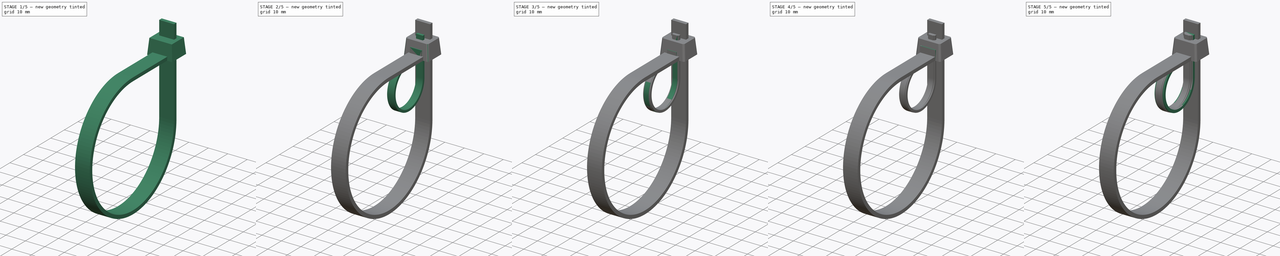
[diagram: build sequence overview — one tinted view per stage of 5, left to right]
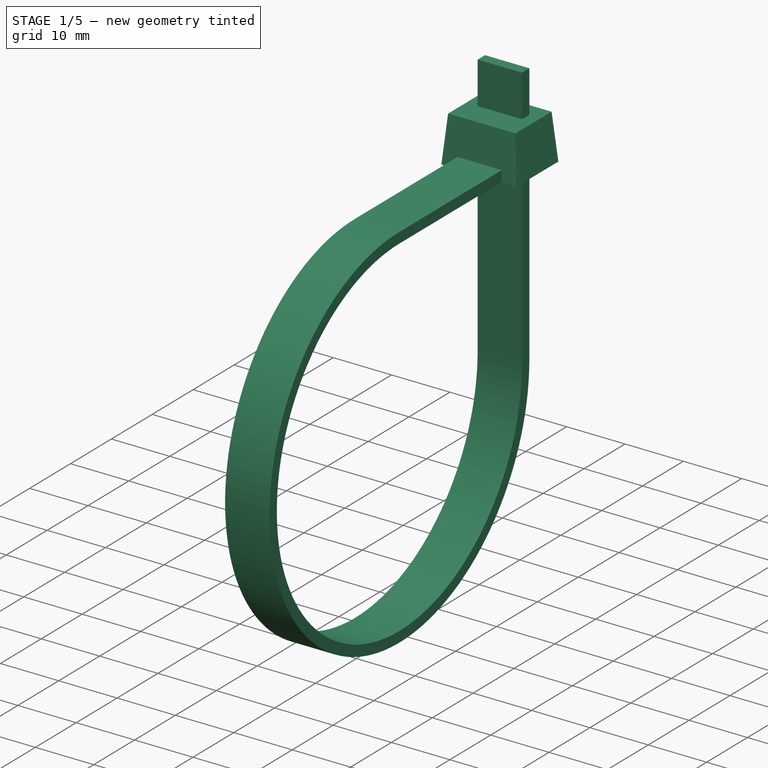
[diagram: stage 1 of 5 — iso view after this stage's code; geometry added in this stage tinted green]
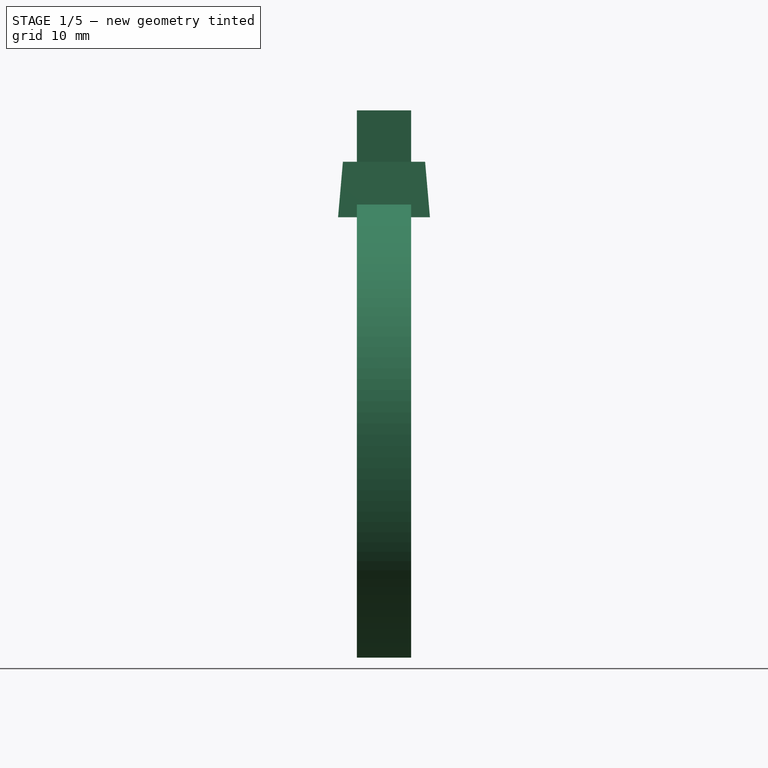
[diagram: stage 1 of 5 — front view after this stage's code; geometry added in this stage tinted green]
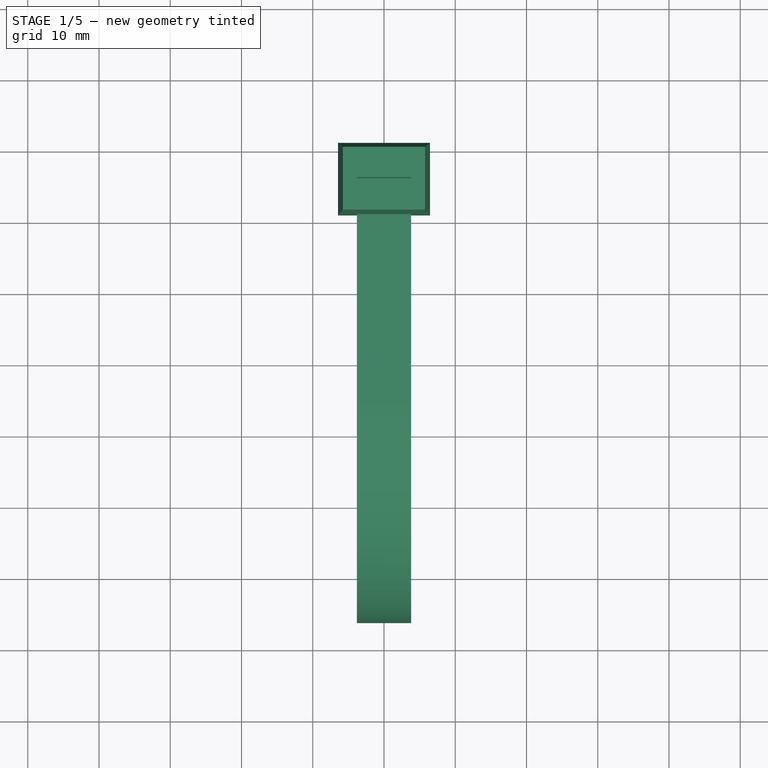
[diagram: stage 1 of 5 — top view after this stage's code; geometry added in this stage tinted green]
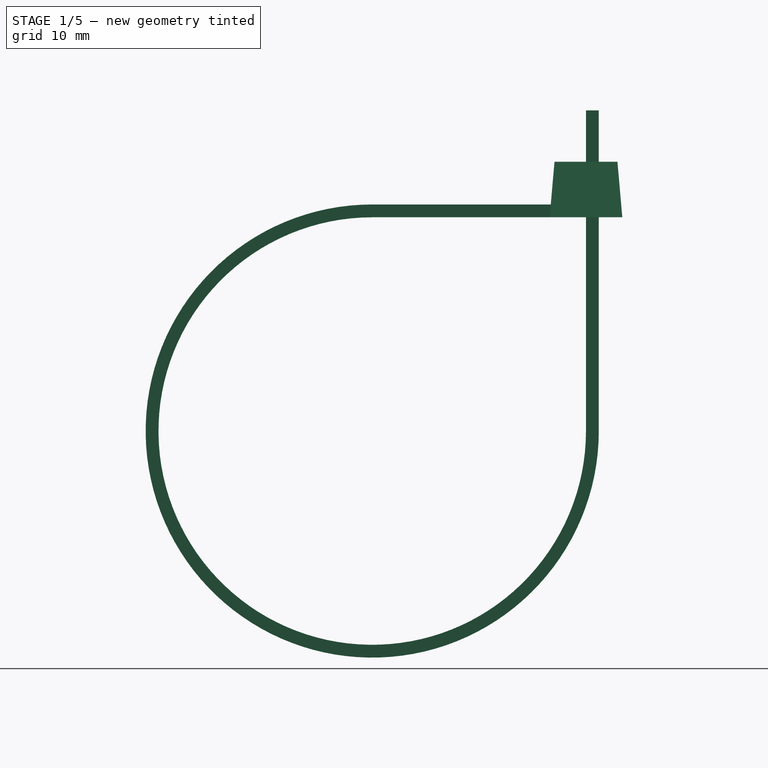
[diagram: stage 1 of 5 — right view after this stage's code; geometry added in this stage tinted green]
FCSTD DOCUMENT  (FreeCAD 0.22R38001 (Git))
Label: Kabelbinder
License: All rights reserved
LicenseURL: https://en.wikipedia.org/wiki/All_rights_reserved
objects: Sketcher::SketchObject×12, PartDesign::Pad×4, PartDesign::AdditivePipe×4, PartDesign::Draft×4, PartDesign::Fillet×4, PartDesign::Body×4
note: 48 computed .brp shape members not serialized (recipe doc carries the construction recipe); baked Part::Feature solids carry a one-line shape summary decoded from their .brp

FEATURE [PartDesign::Body] Body002  label="Kabelbinder_3.5"
  AllowCompound = false
  Group = -> [Sketch007,Pad002,Sketch008,Sketch009,AdditivePipe002,Draft002,Fillet002]
  Origin = -> Origin002
  Tip = -> Fillet002
FEATURE [Sketcher::SketchObject] Sketch010
  AttachmentSupport = -> [XY_Plane003]
  FullyConstrained = true
  MapMode = 5
  sketch-geometry (8):
    g0: LineSegment StartX=-6.45 StartY=0 StartZ=0 EndX=6.45 EndY=0 EndZ=0
    g1: LineSegment StartX=6.45 StartY=0 StartZ=0 EndX=6.45 EndY=10.2 EndZ=0
    g2: LineSegment StartX=6.45 StartY=10.2 StartZ=0 EndX=-6.45 EndY=10.2 EndZ=0
    g3: LineSegment StartX=-6.45 StartY=10.2 StartZ=0 EndX=-6.45 EndY=0 EndZ=0
    g4: LineSegment StartX=-3.8 StartY=6.9 StartZ=0 EndX=-3.8 EndY=5.1 EndZ=0
    g5: LineSegment StartX=-3.8 StartY=5.1 StartZ=0 EndX=3.8 EndY=5.1 EndZ=0
    g6: LineSegment StartX=3.8 StartY=5.1 StartZ=0 EndX=3.8 EndY=6.9 EndZ=0
    g7: LineSegment StartX=3.8 StartY=6.9 StartZ=0 EndX=-3.8 EndY=6.9 EndZ=0
  constraints (22):
    c: Coincident(g0,g1)
    c: Coincident(g1,g2)
    c: Coincident(g2,g3)
    c: Coincident(g3,g0)
    c: Horizontal(g0)
    c: Vertical(g1)
    c: Vertical(g3)
    c: PointOnObject(g0,g-1)
    c: Coincident(g4,g5)
    c: Coincident(g5,g6)
    c: Coincident(g6,g7)
    c: Coincident(g7,g4)
    c: Vertical(g4)
    c: Vertical(g6)
    c: Horizontal(g5)
    c: Symmetric(g2,g1,g-2)
    c: Symmetric(g4,g6,g-2)
    c: DistanceY(g3,g3) = 10.2
    c: DistanceY(g4,g4) = 1.8
    c: DistanceX(g7,g7) = 7.6
    c: DistanceX(g0,g0) = 12.9
    c: Distance(g0,g5) = 5.1
FEATURE [PartDesign::Pad] Pad003
  Direction = (0,0,1)
  Length = 7.8
  Length2 = 10
  Profile = -> Sketch010
  ReferenceAxis = -> Sketch010 [N_Axis]
  Refine = true
  Suppressed = false
  Type = 0
FEATURE [Sketcher::SketchObject] Sketch011  label="Profil_Sketch003"
  AttachmentSupport = -> [Pad003]
  FullyConstrained = true
  MapMode = 5
  Placement = pos=(0,0,0) rot=(1,0,0;1.5708rad)
  sketch-geometry (4):
    g0: LineSegment StartX=-3.8 StartY=0 StartZ=0 EndX=3.8 EndY=0 EndZ=0
    g1: LineSegment StartX=3.8 StartY=0 StartZ=0 EndX=3.8 EndY=1.8 EndZ=0
    g2: LineSegment StartX=3.8 StartY=1.8 StartZ=0 EndX=-3.8 EndY=1.8 EndZ=0
    g3: LineSegment StartX=-3.8 StartY=1.8 StartZ=0 EndX=-3.8 EndY=0 EndZ=0
  constraints (11):
    c: Coincident(g0,g1)
    c: Coincident(g1,g2)
    c: Coincident(g2,g3)
    c: Coincident(g3,g0)
    c: Horizontal(g0)
    c: Vertical(g1)
    c: Vertical(g3)
    c: PointOnObject(g0,g-1)
    c: DistanceY(g3,g3) = 1.8
    c: DistanceX(g0,g0) = 7.6
    c: Symmetric(g2,g1,g-2)
FEATURE [Sketcher::SketchObject] Sketch012  label="Path_Sketch003"
  AttachmentSupport = -> [YZ_Plane003]
  FullyConstrained = true
  MapMode = 5
  Placement = pos=(0,0,0) rot=(0.57735,0.57735,0.57735;2.0944rad)
  sketch-geometry (3):
    g0: LineSegment StartX=0 StartY=0 StartZ=0 EndX=-24.9 EndY=0 EndZ=0
    g1: ArcOfCircle CenterX=-24.9 CenterY=-30 CenterZ=0 NormalX=0 NormalY=0 NormalZ=1 AngleXU=0 Radius=30 StartAngle=1.5708 EndAngle=6.28319
    g2: LineSegment StartX=5.1 StartY=-30 StartZ=0 EndX=5.1 EndY=15 EndZ=0
  constraints (8):
    c: Coincident(g0,g-1)
    c: Horizontal(g0)
    c: Vertical(g2)
    c: Tangent(g2,g1) = -1.5708
    c: Tangent(g1,g0) = -1.5708
    c: DistanceY(g2,g2) = 45
    c: Distance(g2,g-2) = 5.1
    c: Radius(g1) = 30
FEATURE [PartDesign::AdditivePipe] AdditivePipe003
  AuxilleryCurvelinear = true
  AuxillerySpineTangent = false
  BaseFeature = -> Pad003
  Binormal = (0,0,0)
  Mode = 0
  Profile = -> Sketch011
  Refine = true
  Spine = -> Sketch012
  SpineTangent = false
  Suppressed = false
  Transformation = 0
  Transition = 0
FEATURE [PartDesign::Draft] Draft003
  Angle = 5
  Base = -> AdditivePipe003 [Face1,Face5,Face3,Face6]
  BaseFeature = -> AdditivePipe003
  NeutralPlane = -> AdditivePipe003 [Face14]
  Refine = true
  Reversed = true
  SupportTransform = false
  Suppressed = false
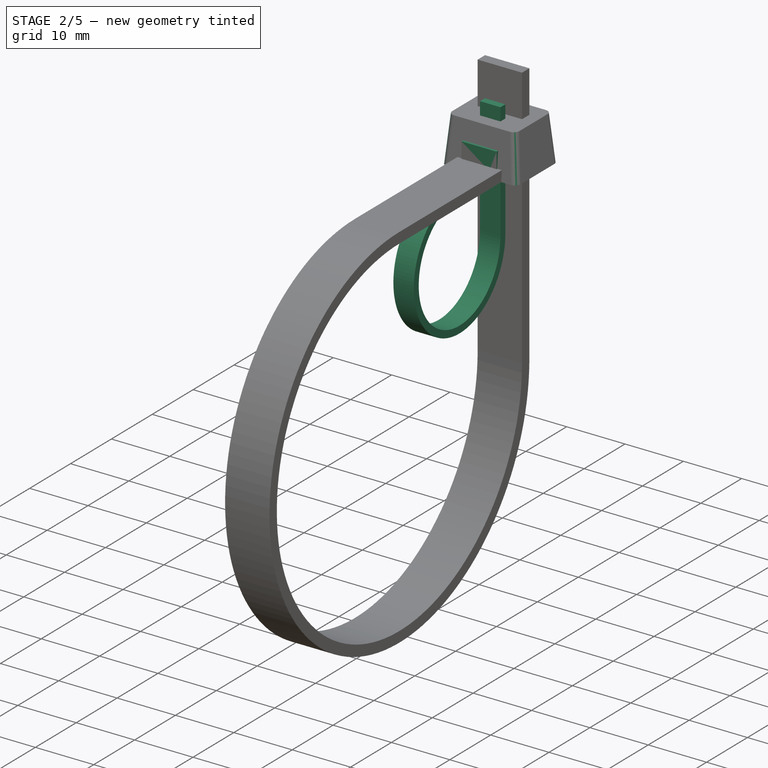
[diagram: stage 2 of 5 — iso view after this stage's code; geometry added in this stage tinted green]
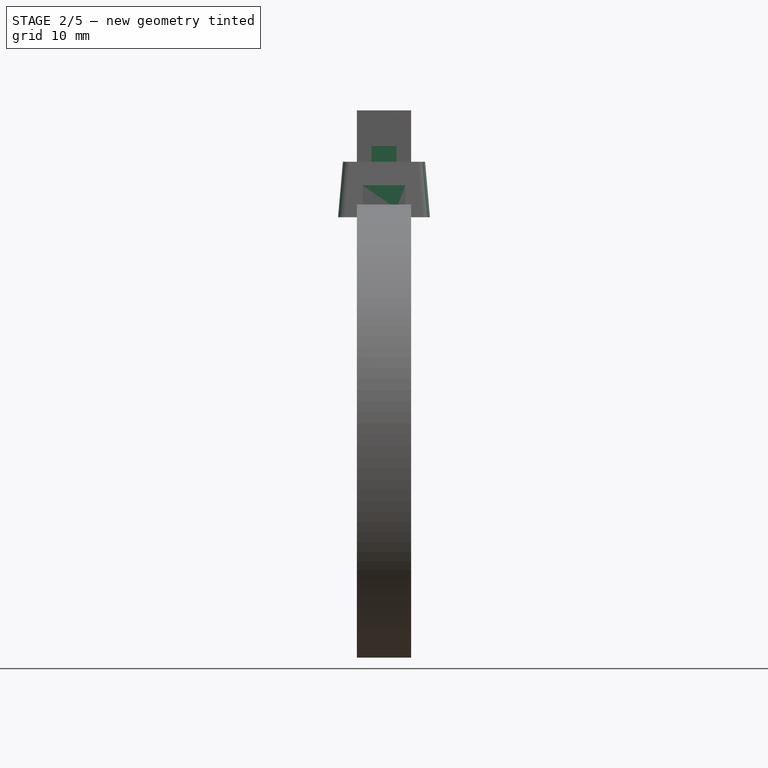
[diagram: stage 2 of 5 — front view after this stage's code; geometry added in this stage tinted green]
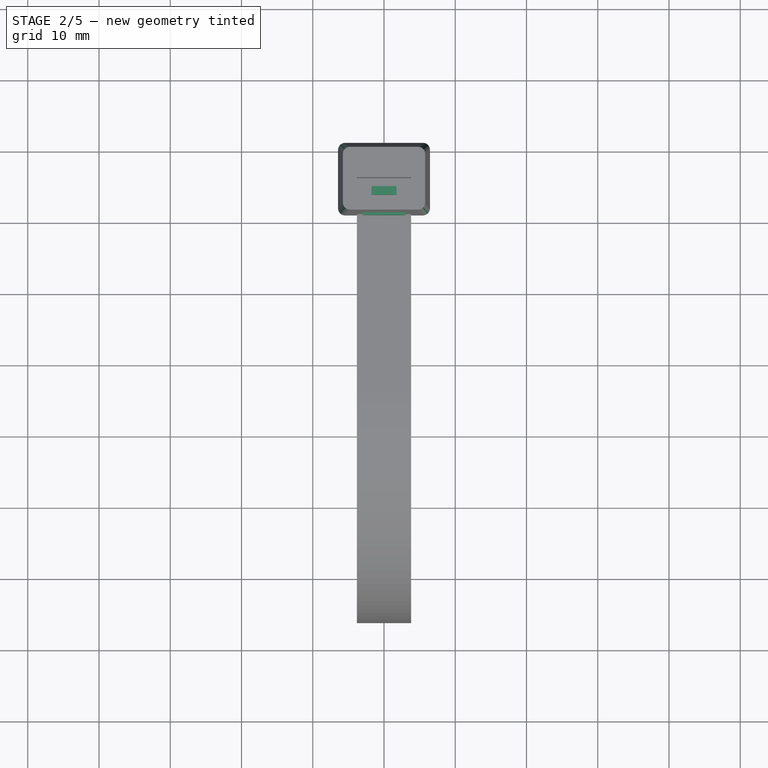
[diagram: stage 2 of 5 — top view after this stage's code; geometry added in this stage tinted green]
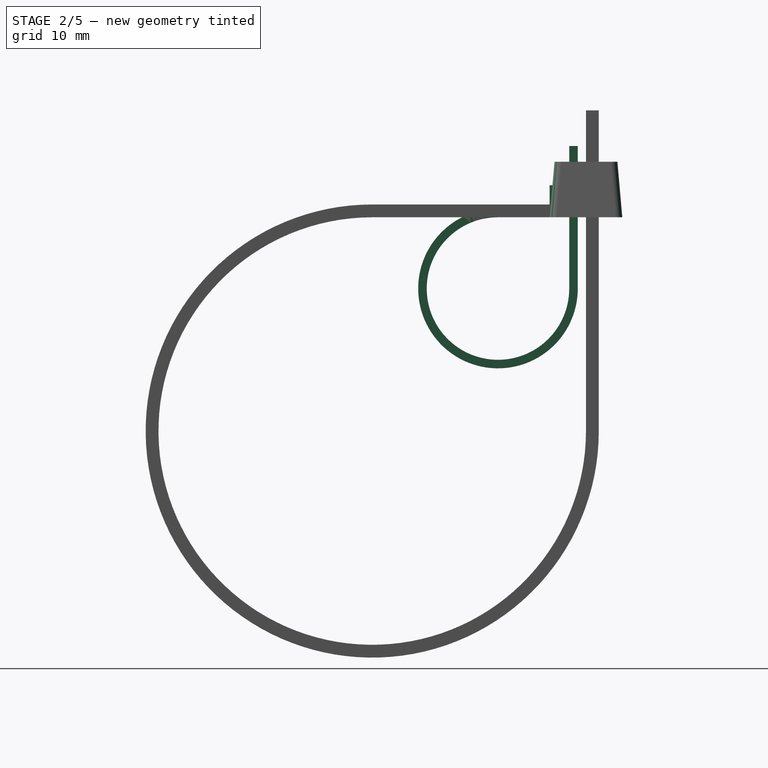
[diagram: stage 2 of 5 — right view after this stage's code; geometry added in this stage tinted green]
FEATURE [PartDesign::Body] Body001  label="Kabelbinder_2.5"
  AllowCompound = false
  Group = -> [Sketch004,Pad001,Sketch005,Sketch006,AdditivePipe001,Draft001,Fillet001]
  Origin = -> Origin001
  Tip = -> Fillet001
FEATURE [Sketcher::SketchObject] Sketch007
  AttachmentSupport = -> [XY_Plane002]
  FullyConstrained = true
  MapMode = 5
  sketch-geometry (8):
    g0: LineSegment StartX=-3 StartY=0 StartZ=0 EndX=3 EndY=0 EndZ=0
    g1: LineSegment StartX=3 StartY=0 StartZ=0 EndX=3 EndY=5.5 EndZ=0
    g2: LineSegment StartX=3 StartY=5.5 StartZ=0 EndX=-3 EndY=5.5 EndZ=0
    g3: LineSegment StartX=-3 StartY=5.5 StartZ=0 EndX=-3 EndY=0 EndZ=0
    g4: LineSegment StartX=-1.75 StartY=3.95 StartZ=0 EndX=-1.75 EndY=2.75 EndZ=0
    g5: LineSegment StartX=-1.75 StartY=2.75 StartZ=0 EndX=1.75 EndY=2.75 EndZ=0
    g6: LineSegment StartX=1.75 StartY=2.75 StartZ=0 EndX=1.75 EndY=3.95 EndZ=0
    g7: LineSegment StartX=1.75 StartY=3.95 StartZ=0 EndX=-1.75 EndY=3.95 EndZ=0
  constraints (22):
    c: Coincident(g0,g1)
    c: Coincident(g1,g2)
    c: Coincident(g2,g3)
    c: Coincident(g3,g0)
    c: Horizontal(g0)
    c: Vertical(g1)
    c: Vertical(g3)
    c: PointOnObject(g0,g-1)
    c: Coincident(g4,g5)
    c: Coincident(g5,g6)
    c: Coincident(g6,g7)
    c: Coincident(g7,g4)
    c: Vertical(g4)
    c: Vertical(g6)
    c: Horizontal(g5)
    c: Symmetric(g2,g1,g-2)
    c: Symmetric(g4,g6,g-2)
    c: DistanceY(g3,g3) = 5.5
    c: DistanceY(g4,g4) = 1.2
    c: DistanceX(g7,g7) = 3.5
    c: DistanceX(g0,g0) = 6
    c: Distance(g0,g5) = 2.75
FEATURE [PartDesign::Pad] Pad002
  Direction = (0,0,1)
  Length = 4.5
  Length2 = 10
  Profile = -> Sketch007
  ReferenceAxis = -> Sketch007 [N_Axis]
  Refine = true
  Suppressed = false
  Type = 0
FEATURE [Sketcher::SketchObject] Sketch008  label="Profil_Sketch002"
  AttachmentSupport = -> [Pad002]
  FullyConstrained = true
  MapMode = 5
  Placement = pos=(0,0,0) rot=(1,0,0;1.5708rad)
  sketch-geometry (4):
    g0: LineSegment StartX=-1.75 StartY=0 StartZ=0 EndX=1.75 EndY=0 EndZ=0
    g1: LineSegment StartX=1.75 StartY=0 StartZ=0 EndX=1.75 EndY=1.2 EndZ=0
    g2: LineSegment StartX=1.75 StartY=1.2 StartZ=0 EndX=-1.75 EndY=1.2 EndZ=0
    g3: LineSegment StartX=-1.75 StartY=1.2 StartZ=0 EndX=-1.75 EndY=0 EndZ=0
  constraints (11):
    c: Coincident(g0,g1)
    c: Coincident(g1,g2)
    c: Coincident(g2,g3)
    c: Coincident(g3,g0)
    c: Horizontal(g0)
    c: Vertical(g1)
    c: Vertical(g3)
    c: PointOnObject(g0,g-1)
    c: DistanceY(g3,g3) = 1.2
    c: DistanceX(g0,g0) = 3.5
    c: Symmetric(g2,g1,g-2)
FEATURE [Sketcher::SketchObject] Sketch009  label="Path_Sketch002"
  AttachmentSupport = -> [YZ_Plane002]
  FullyConstrained = true
  MapMode = 5
  Placement = pos=(0,0,0) rot=(0.57735,0.57735,0.57735;2.0944rad)
  sketch-geometry (3):
    g0: LineSegment StartX=0 StartY=0 StartZ=0 EndX=-7.25 EndY=0 EndZ=0
    g1: ArcOfCircle CenterX=-7.25 CenterY=-10 CenterZ=0 NormalX=0 NormalY=0 NormalZ=1 AngleXU=0 Radius=10 StartAngle=1.5708 EndAngle=6.28319
    g2: LineSegment StartX=2.75 StartY=-10 StartZ=0 EndX=2.75 EndY=10 EndZ=0
  constraints (8):
    c: Coincident(g0,g-1)
    c: Horizontal(g0)
    c: Vertical(g2)
    c: Tangent(g2,g1) = -1.5708
    c: Tangent(g1,g0) = -1.5708
    c: DistanceY(g2,g2) = 20
    c: Distance(g2,g-2) = 2.75
    c: Radius(g1) = 10
FEATURE [PartDesign::AdditivePipe] AdditivePipe002
  AuxilleryCurvelinear = true
  AuxillerySpineTangent = false
  BaseFeature = -> Pad002
  Binormal = (0,0,0)
  Mode = 0
  Profile = -> Sketch008
  Refine = true
  Spine = -> Sketch009
  SpineTangent = false
  Suppressed = false
  Transformation = 0
  Transition = 0
FEATURE [PartDesign::Fillet] Fillet003
  Base = -> Draft003 [Edge21,Edge8,Edge6,Edge12]
  BaseFeature = -> Draft003
  Radius = 1
  Refine = true
  SupportTransform = false
  Suppressed = false
  UseAllEdges = false
FEATURE [PartDesign::Body] Body003  label="Kabelbinder_7.6"
  AllowCompound = false
  Group = -> [Sketch010,Pad003,Sketch011,Sketch012,AdditivePipe003,Draft003,Fillet003]
  Origin = -> Origin003
  Tip = -> Draft003
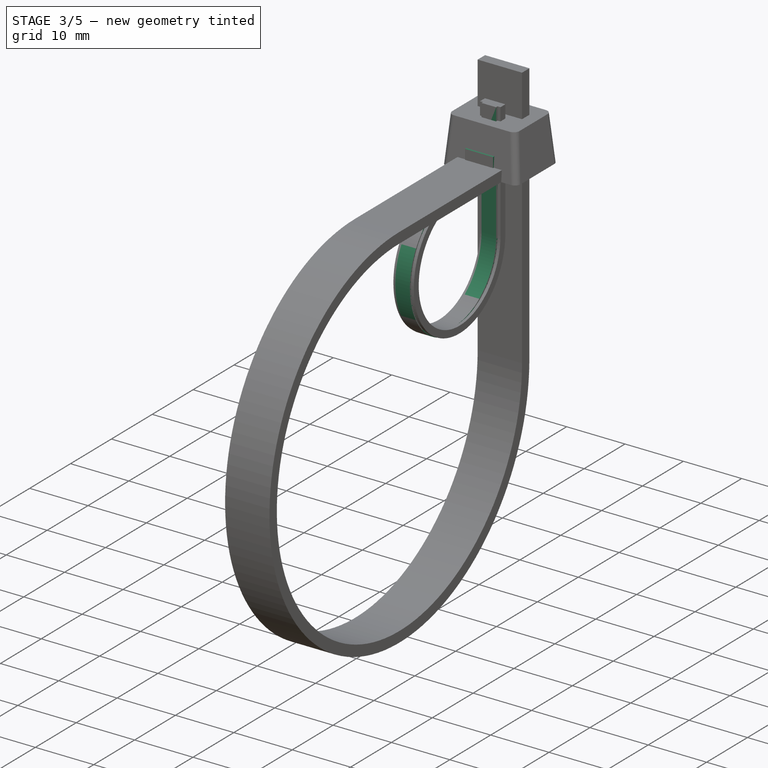
[diagram: stage 3 of 5 — iso view after this stage's code; geometry added in this stage tinted green]
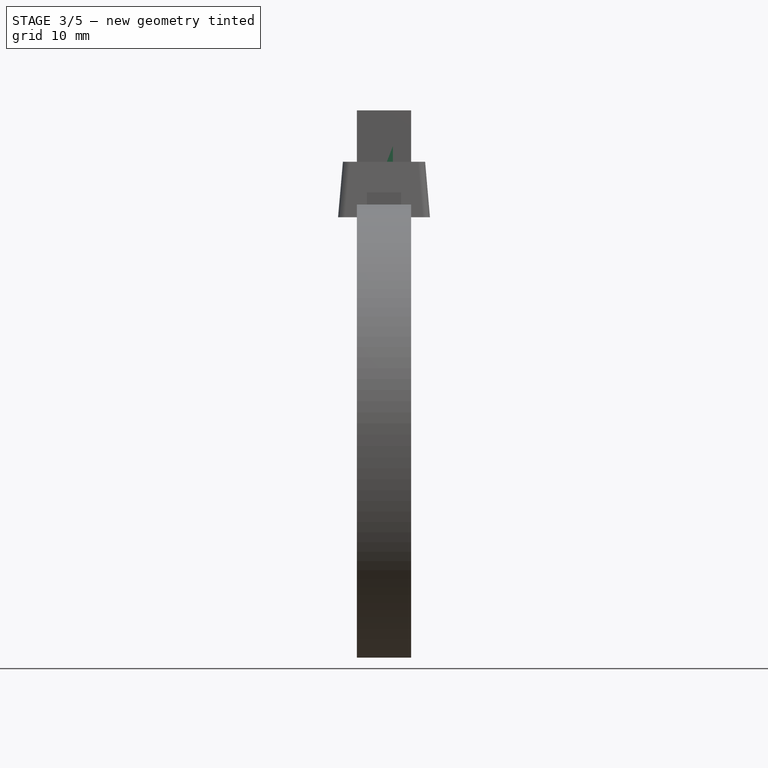
[diagram: stage 3 of 5 — front view after this stage's code; geometry added in this stage tinted green]
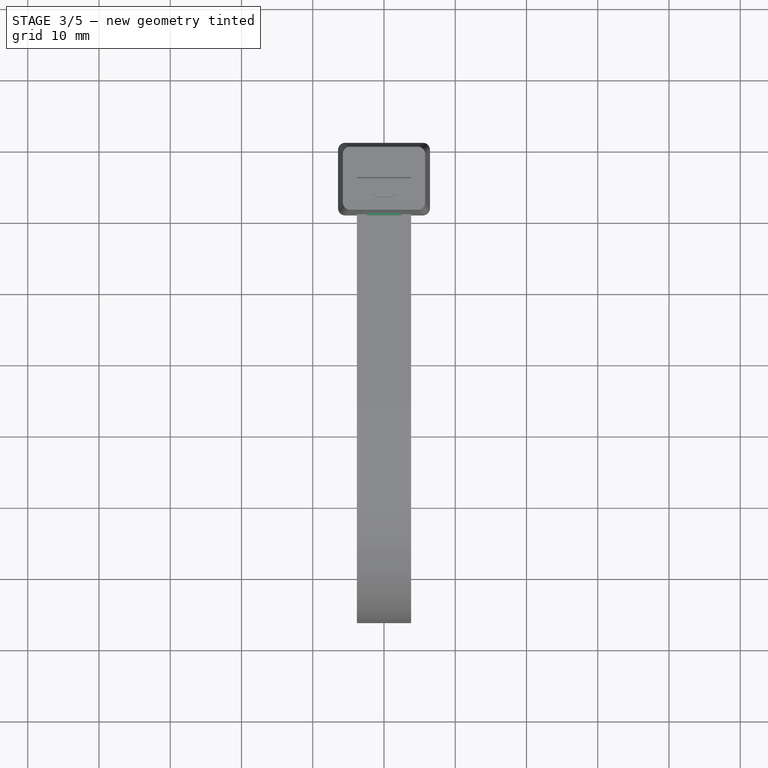
[diagram: stage 3 of 5 — top view after this stage's code; geometry added in this stage tinted green]
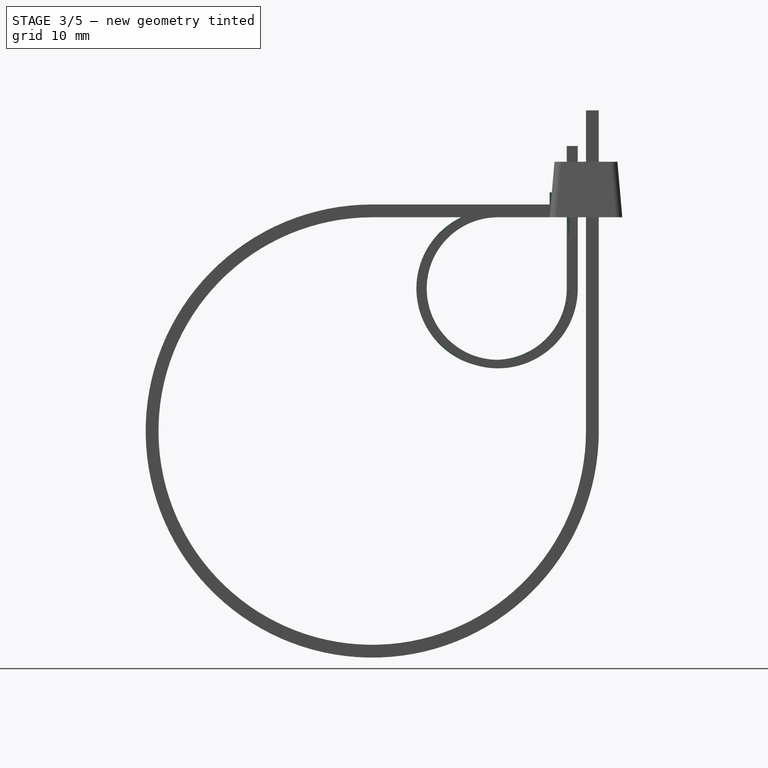
[diagram: stage 3 of 5 — right view after this stage's code; geometry added in this stage tinted green]
FEATURE [PartDesign::Body] Body  label="Kabelbinder_4.7mm"
  AllowCompound = false
  Group = -> [Sketch,Pad,Sketch002,Sketch003,AdditivePipe,Draft,Fillet]
  Origin = -> Origin
  Tip = -> Fillet
FEATURE [Sketcher::SketchObject] Sketch004
  AttachmentSupport = -> [XY_Plane001]
  FullyConstrained = true
  MapMode = 5
  sketch-geometry (8):
    g0: LineSegment StartX=-2.4 StartY=0 StartZ=0 EndX=2.4 EndY=0 EndZ=0
    g1: LineSegment StartX=2.4 StartY=0 StartZ=0 EndX=2.4 EndY=4.8 EndZ=0
    g2: LineSegment StartX=2.4 StartY=4.8 StartZ=0 EndX=-2.4 EndY=4.8 EndZ=0
    g3: LineSegment StartX=-2.4 StartY=4.8 StartZ=0 EndX=-2.4 EndY=0 EndZ=0
    g4: LineSegment StartX=-1.25 StartY=3.5 StartZ=0 EndX=-1.25 EndY=2.4 EndZ=0
    g5: LineSegment StartX=-1.25 StartY=2.4 StartZ=0 EndX=1.25 EndY=2.4 EndZ=0
    g6: LineSegment StartX=1.25 StartY=2.4 StartZ=0 EndX=1.25 EndY=3.5 EndZ=0
    g7: LineSegment StartX=1.25 StartY=3.5 StartZ=0 EndX=-1.25 EndY=3.5 EndZ=0
  constraints (22):
    c: Coincident(g0,g1)
    c: Coincident(g1,g2)
    c: Coincident(g2,g3)
    c: Coincident(g3,g0)
    c: Horizontal(g0)
    c: Vertical(g1)
    c: Vertical(g3)
    c: PointOnObject(g0,g-1)
    c: Coincident(g4,g5)
    c: Coincident(g5,g6)
    c: Coincident(g6,g7)
    c: Coincident(g7,g4)
    c: Vertical(g4)
    c: Vertical(g6)
    c: Horizontal(g5)
    c: Symmetric(g2,g1,g-2)
    c: Symmetric(g4,g6,g-2)
    c: DistanceY(g3,g3) = 4.8
    c: DistanceY(g4,g4) = 1.1
    c: DistanceX(g7,g7) = 2.5
    c: DistanceX(g0,g0) = 4.8
    c: Distance(g0,g5) = 2.4
FEATURE [PartDesign::Pad] Pad001
  Direction = (0,0,1)
  Length = 3.5
  Length2 = 10
  Profile = -> Sketch004
  ReferenceAxis = -> Sketch004 [N_Axis]
  Refine = true
  Suppressed = false
  Type = 0
FEATURE [Sketcher::SketchObject] Sketch005  label="Profil_Sketch001"
  AttachmentSupport = -> [Pad001]
  FullyConstrained = true
  MapMode = 5
  Placement = pos=(0,0,0) rot=(1,0,0;1.5708rad)
  sketch-geometry (4):
    g0: LineSegment StartX=-1.25 StartY=0 StartZ=0 EndX=1.25 EndY=0 EndZ=0
    g1: LineSegment StartX=1.25 StartY=0 StartZ=0 EndX=1.25 EndY=1.1 EndZ=0
    g2: LineSegment StartX=1.25 StartY=1.1 StartZ=0 EndX=-1.25 EndY=1.1 EndZ=0
    g3: LineSegment StartX=-1.25 StartY=1.1 StartZ=0 EndX=-1.25 EndY=0 EndZ=0
  constraints (11):
    c: Coincident(g0,g1)
    c: Coincident(g1,g2)
    c: Coincident(g2,g3)
    c: Coincident(g3,g0)
    c: Horizontal(g0)
    c: Vertical(g1)
    c: Vertical(g3)
    c: PointOnObject(g0,g-1)
    c: DistanceY(g3,g3) = 1.1
    c: DistanceX(g0,g0) = 2.5
    c: Symmetric(g2,g1,g-2)
FEATURE [Sketcher::SketchObject] Sketch006  label="Path_Sketch001"
  AttachmentSupport = -> [YZ_Plane001]
  FullyConstrained = true
  MapMode = 5
  Placement = pos=(0,0,0) rot=(0.57735,0.57735,0.57735;2.0944rad)
  sketch-geometry (3):
    g0: LineSegment StartX=0 StartY=0 StartZ=0 EndX=-7.6 EndY=0 EndZ=0
    g1: ArcOfCircle CenterX=-7.6 CenterY=-10 CenterZ=0 NormalX=0 NormalY=0 NormalZ=1 AngleXU=0 Radius=10 StartAngle=1.5708 EndAngle=6.28319
    g2: LineSegment StartX=2.4 StartY=-10 StartZ=0 EndX=2.4 EndY=10 EndZ=0
  constraints (8):
    c: Coincident(g0,g-1)
    c: Horizontal(g0)
    c: Vertical(g2)
    c: Tangent(g2,g1) = -1.5708
    c: Tangent(g1,g0) = -1.5708
    c: DistanceY(g2,g2) = 20
    c: Distance(g2,g-2) = 2.4
    c: Radius(g1) = 10
FEATURE [PartDesign::AdditivePipe] AdditivePipe001
  AuxilleryCurvelinear = true
  AuxillerySpineTangent = false
  BaseFeature = -> Pad001
  Binormal = (0,0,0)
  Mode = 0
  Profile = -> Sketch005
  Refine = true
  Spine = -> Sketch006
  SpineTangent = false
  Suppressed = false
  Transformation = 0
  Transition = 0
FEATURE [PartDesign::Draft] Draft002
  Angle = 5
  Base = -> AdditivePipe002 [Face1,Face5,Face3,Face6]
  BaseFeature = -> AdditivePipe002
  NeutralPlane = -> AdditivePipe002 [Face14]
  Refine = true
  Reversed = true
  SupportTransform = false
  Suppressed = false
FEATURE [PartDesign::Fillet] Fillet002
  Base = -> Draft002 [Edge6,Edge12,Edge21,Edge8]
  BaseFeature = -> Draft002
  Radius = 1
  Refine = true
  SupportTransform = false
  Suppressed = false
  UseAllEdges = false
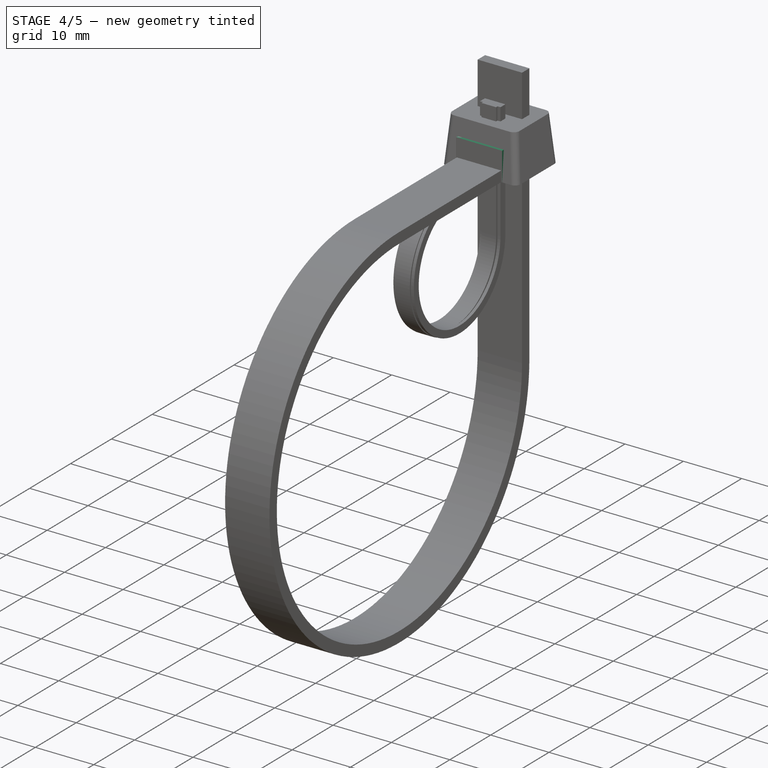
[diagram: stage 4 of 5 — iso view after this stage's code; geometry added in this stage tinted green]
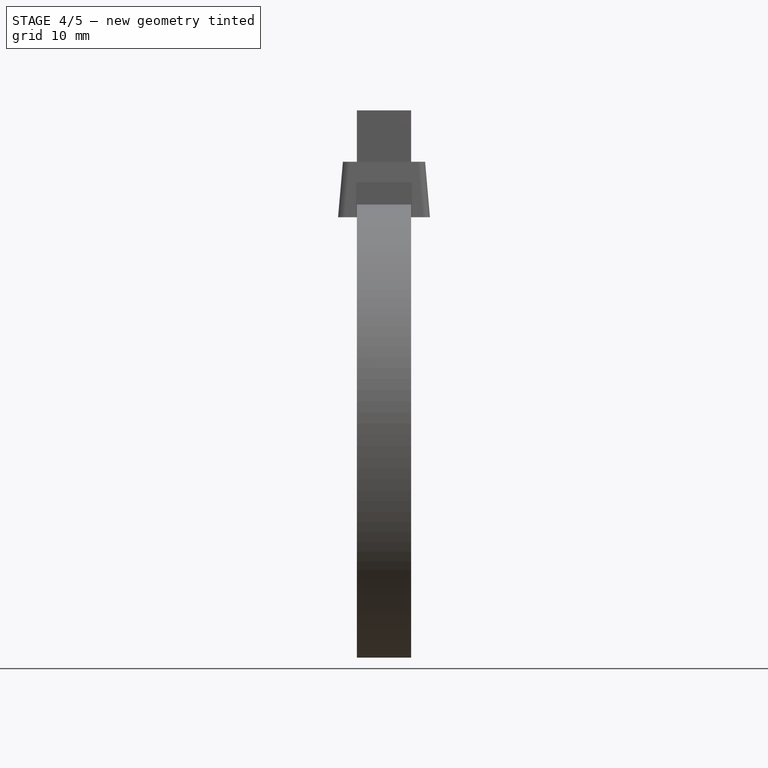
[diagram: stage 4 of 5 — front view after this stage's code; geometry added in this stage tinted green]
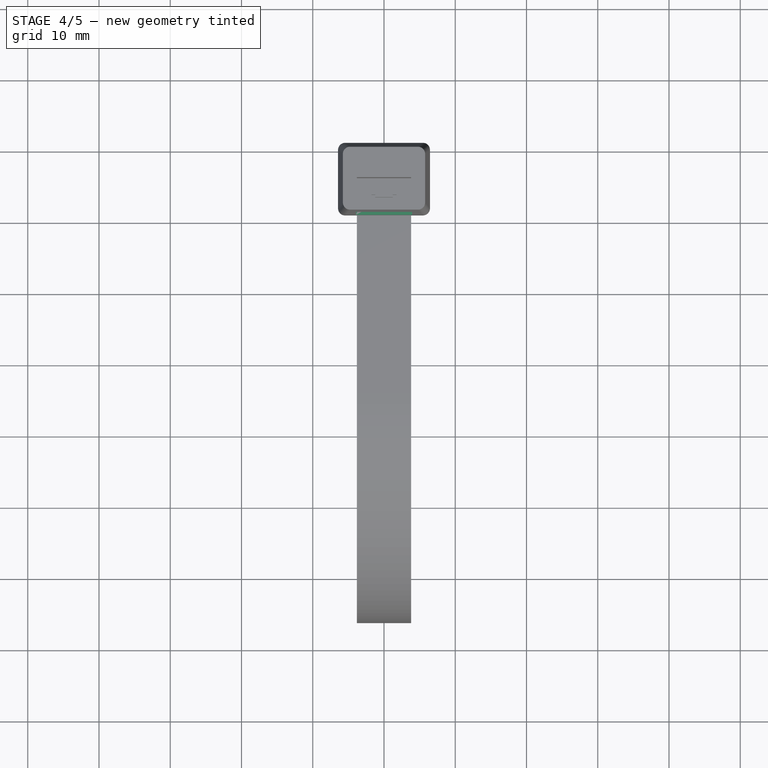
[diagram: stage 4 of 5 — top view after this stage's code; geometry added in this stage tinted green]
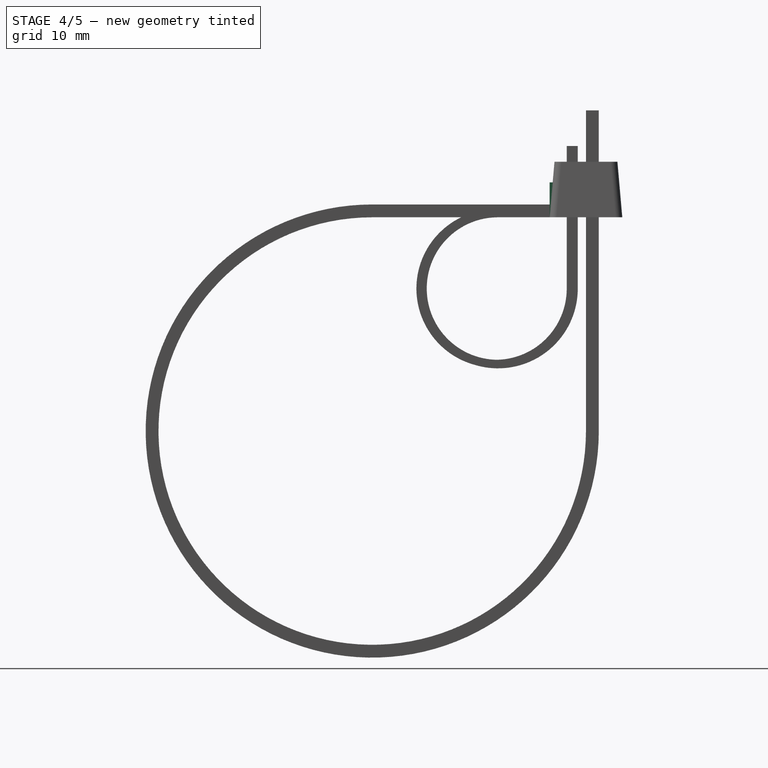
[diagram: stage 4 of 5 — right view after this stage's code; geometry added in this stage tinted green]
FEATURE [Sketcher::SketchObject] Sketch
  AttachmentSupport = -> [XY_Plane]
  FullyConstrained = true
  MapMode = 5
  sketch-geometry (8):
    g0: LineSegment StartX=-3.95 StartY=0 StartZ=0 EndX=3.95 EndY=0 EndZ=0
    g1: LineSegment StartX=3.95 StartY=0 StartZ=0 EndX=3.95 EndY=6.9 EndZ=0
    g2: LineSegment StartX=3.95 StartY=6.9 StartZ=0 EndX=-3.95 EndY=6.9 EndZ=0
    g3: LineSegment StartX=-3.95 StartY=6.9 StartZ=0 EndX=-3.95 EndY=0 EndZ=0
    g4: LineSegment StartX=-2.4 StartY=4.8 StartZ=0 EndX=-2.4 EndY=3.4 EndZ=0
    g5: LineSegment StartX=-2.4 StartY=3.4 StartZ=0 EndX=2.4 EndY=3.4 EndZ=0
    g6: LineSegment StartX=2.4 StartY=3.4 StartZ=0 EndX=2.4 EndY=4.8 EndZ=0
    g7: LineSegment StartX=2.4 StartY=4.8 StartZ=0 EndX=-2.4 EndY=4.8 EndZ=0
  constraints (22):
    c: Coincident(g0,g1)
    c: Coincident(g1,g2)
    c: Coincident(g2,g3)
    c: Coincident(g3,g0)
    c: Horizontal(g0)
    c: Vertical(g1)
    c: Vertical(g3)
    c: PointOnObject(g0,g-1)
    c: Coincident(g4,g5)
    c: Coincident(g5,g6)
    c: Coincident(g6,g7)
    c: Coincident(g7,g4)
    c: Vertical(g4)
    c: Vertical(g6)
    c: Horizontal(g5)
    c: Symmetric(g2,g1,g-2)
    c: Symmetric(g4,g6,g-2)
    c: DistanceY(g3,g3) = 6.9
    c: DistanceY(g4,g4) = 1.4
    c: DistanceX(g7,g7) = 4.8
    c: DistanceX(g0,g0) = 7.9
    c: Distance(g2,g7) = 2.1
FEATURE [PartDesign::Pad] Pad
  Direction = (0,0,1)
  Length = 4.9
  Length2 = 10
  Profile = -> Sketch
  ReferenceAxis = -> Sketch [N_Axis]
  Refine = true
  Suppressed = false
  Type = 0
FEATURE [PartDesign::Draft] Draft001
  Angle = 5
  Base = -> AdditivePipe001 [Face1,Face5,Face3,Face6]
  BaseFeature = -> AdditivePipe001
  NeutralPlane = -> AdditivePipe001 [Face14]
  Refine = true
  Reversed = true
  SupportTransform = false
  Suppressed = false
FEATURE [PartDesign::Fillet] Fillet001
  Base = -> Draft001 [Edge21,Edge8,Edge6,Edge12]
  BaseFeature = -> Draft001
  Radius = 1
  Refine = true
  SupportTransform = false
  Suppressed = false
  UseAllEdges = false
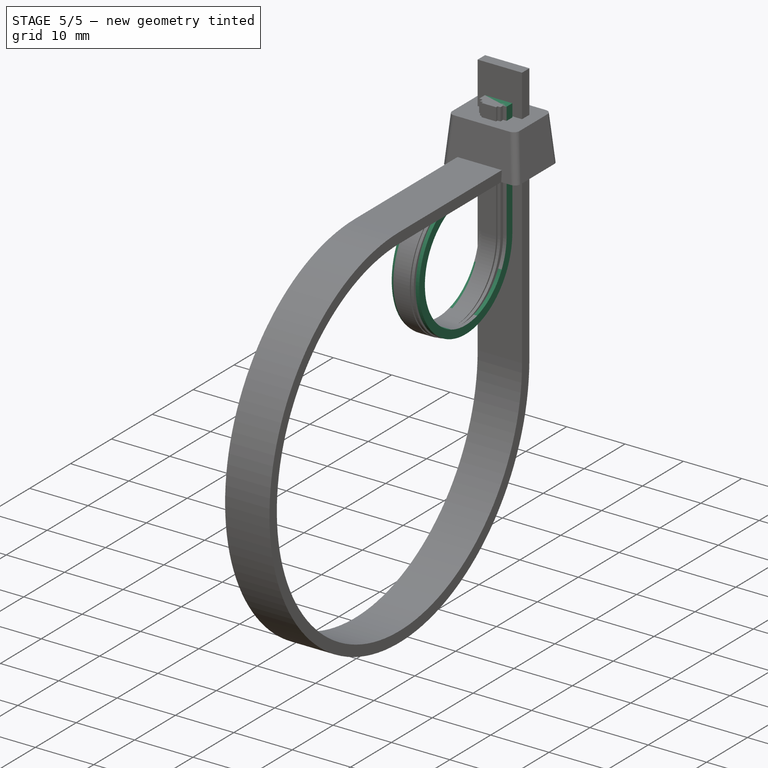
[diagram: stage 5 of 5 — iso view after this stage's code; geometry added in this stage tinted green]
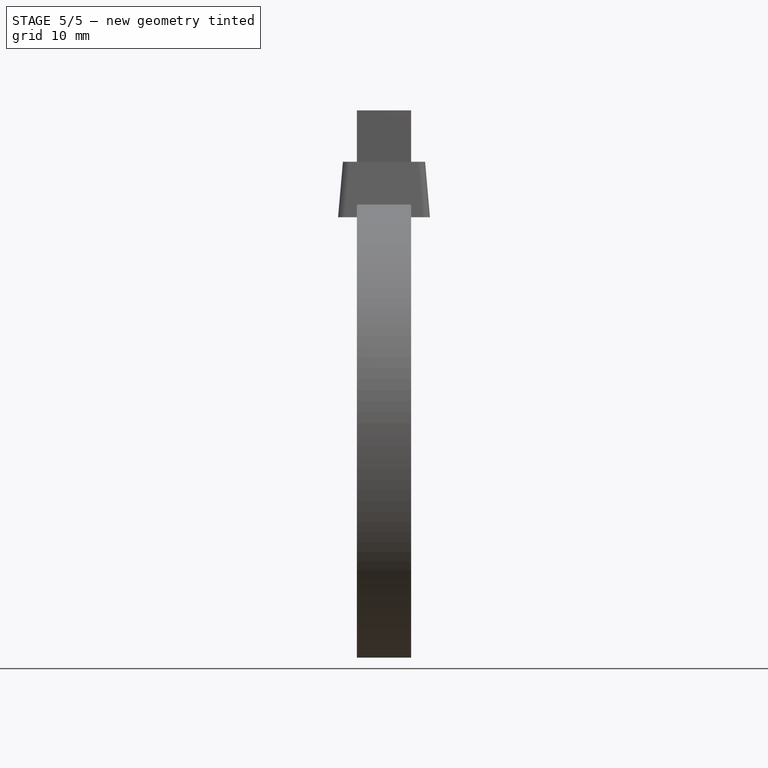
[diagram: stage 5 of 5 — front view after this stage's code; geometry added in this stage tinted green]
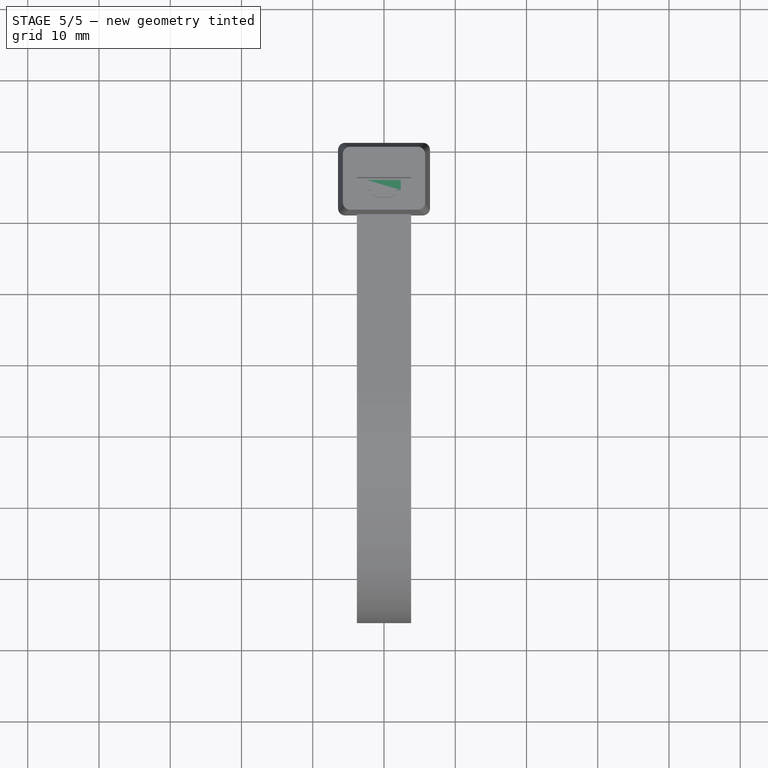
[diagram: stage 5 of 5 — top view after this stage's code; geometry added in this stage tinted green]
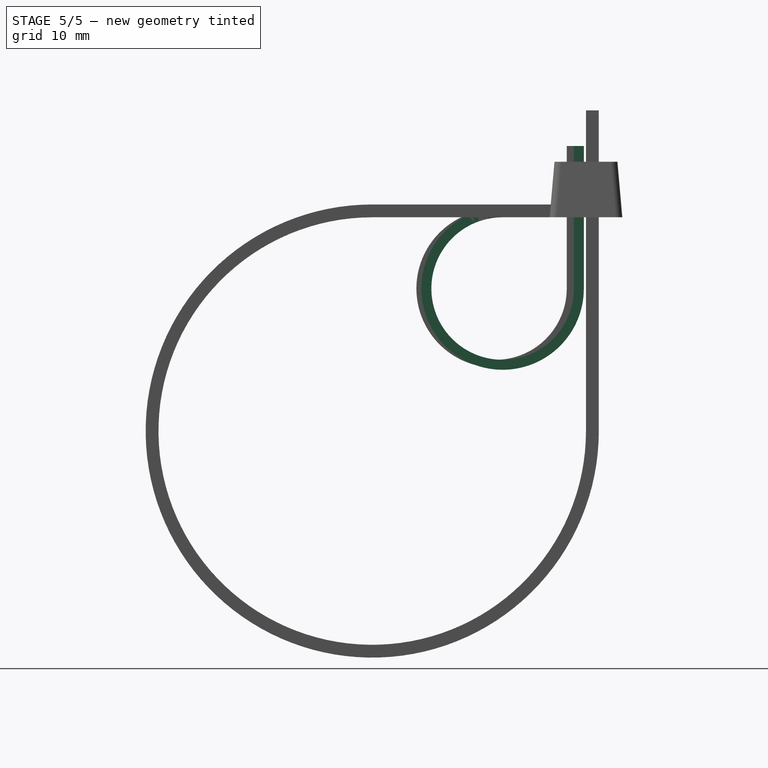
[diagram: stage 5 of 5 — right view after this stage's code; geometry added in this stage tinted green]
FEATURE [Sketcher::SketchObject] Sketch002  label="Profil_Sketch"
  AttachmentSupport = -> [Pad]
  FullyConstrained = true
  MapMode = 5
  Placement = pos=(0,0,0) rot=(1,0,0;1.5708rad)
  sketch-geometry (4):
    g0: LineSegment StartX=-2.35 StartY=0 StartZ=0 EndX=2.35 EndY=0 EndZ=0
    g1: LineSegment StartX=2.35 StartY=0 StartZ=0 EndX=2.35 EndY=1.4 EndZ=0
    g2: LineSegment StartX=2.35 StartY=1.4 StartZ=0 EndX=-2.35 EndY=1.4 EndZ=0
    g3: LineSegment StartX=-2.35 StartY=1.4 StartZ=0 EndX=-2.35 EndY=0 EndZ=0
  constraints (11):
    c: Coincident(g0,g1)
    c: Coincident(g1,g2)
    c: Coincident(g2,g3)
    c: Coincident(g3,g0)
    c: Horizontal(g0)
    c: Vertical(g1)
    c: Vertical(g3)
    c: PointOnObject(g0,g-1)
    c: DistanceY(g3,g3) = 1.4
    c: DistanceX(g0,g0) = 4.7
    c: Symmetric(g2,g1,g-2)
FEATURE [Sketcher::SketchObject] Sketch003  label="Path_Sketch"
  AttachmentSupport = -> [YZ_Plane]
  FullyConstrained = true
  MapMode = 5
  Placement = pos=(0,0,0) rot=(0.57735,0.57735,0.57735;2.0944rad)
  sketch-geometry (3):
    g0: LineSegment StartX=0 StartY=-1.8e-15 StartZ=0 EndX=-6.6 EndY=-1.8e-15 EndZ=0
    g1: ArcOfCircle CenterX=-6.6 CenterY=-10 CenterZ=0 NormalX=0 NormalY=0 NormalZ=1 AngleXU=0 Radius=10 StartAngle=1.5708 EndAngle=6.28319
    g2: LineSegment StartX=3.4 StartY=-10 StartZ=0 EndX=3.4 EndY=10 EndZ=0
  constraints (8):
    c: Coincident(g0,g-1)
    c: Horizontal(g0)
    c: Vertical(g2)
    c: Tangent(g2,g1) = -1.5708
    c: Tangent(g1,g0) = -1.5708
    c: DistanceY(g2,g2) = 20
    c: Distance(g2,g-2) = 3.4
    c: Radius(g1) = 10
FEATURE [PartDesign::AdditivePipe] AdditivePipe
  AuxilleryCurvelinear = true
  AuxillerySpineTangent = false
  BaseFeature = -> Pad
  Binormal = (0,0,0)
  Mode = 0
  Profile = -> Sketch002
  Refine = true
  Spine = -> Sketch003
  SpineTangent = false
  Suppressed = false
  Transformation = 0
  Transition = 0
FEATURE [PartDesign::Draft] Draft
  Angle = 5
  Base = -> AdditivePipe [Face1,Face5,Face3,Face6]
  BaseFeature = -> AdditivePipe
  NeutralPlane = -> AdditivePipe [Face18]
  Refine = true
  Reversed = true
  SupportTransform = false
  Suppressed = false
FEATURE [PartDesign::Fillet] Fillet
  Base = -> Draft [Edge8,Edge6,Edge12,Edge25]
  BaseFeature = -> Draft
  Radius = 1
  Refine = true
  SupportTransform = false
  Suppressed = false
  UseAllEdges = false
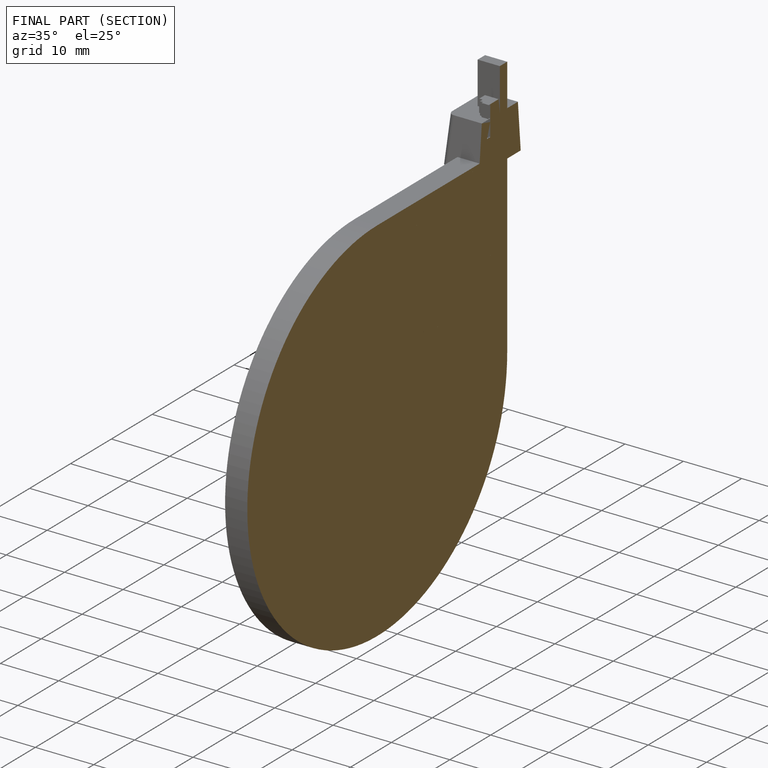
[diagram: finished part — half-section view (interior)]
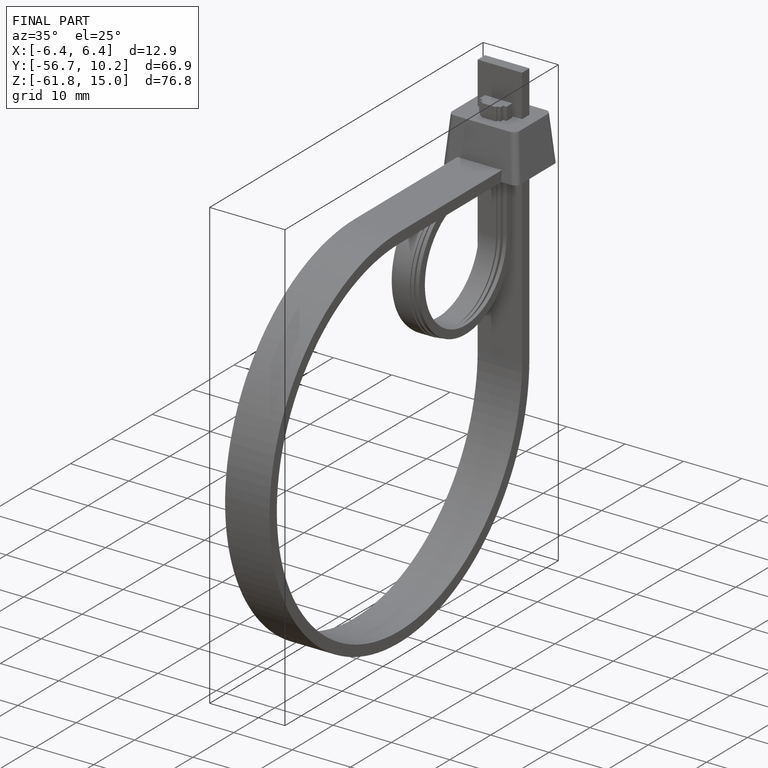
[diagram: finished part — iso view with bounding-box wireframe]
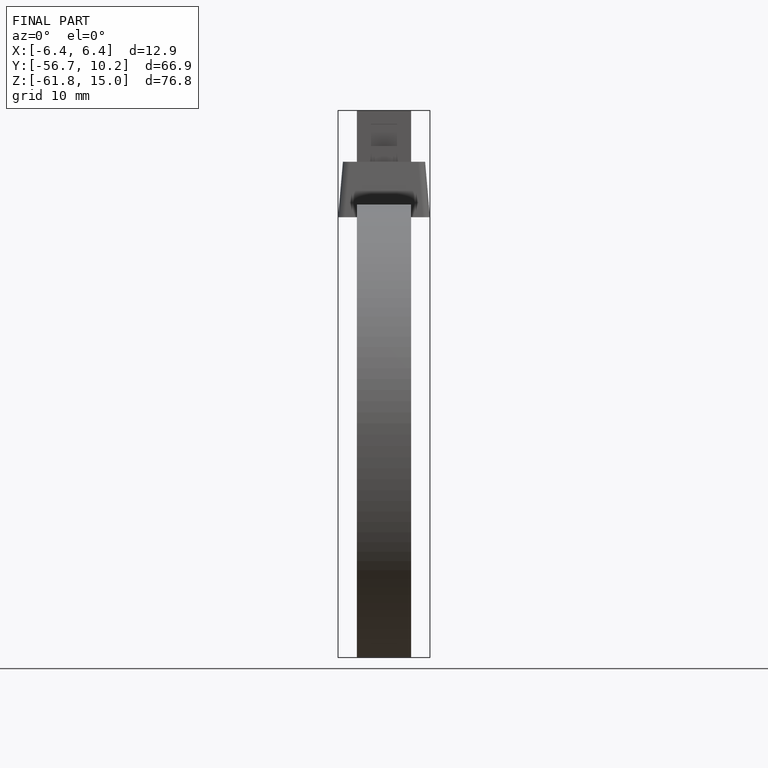
[diagram: finished part — front view with bounding-box wireframe]
